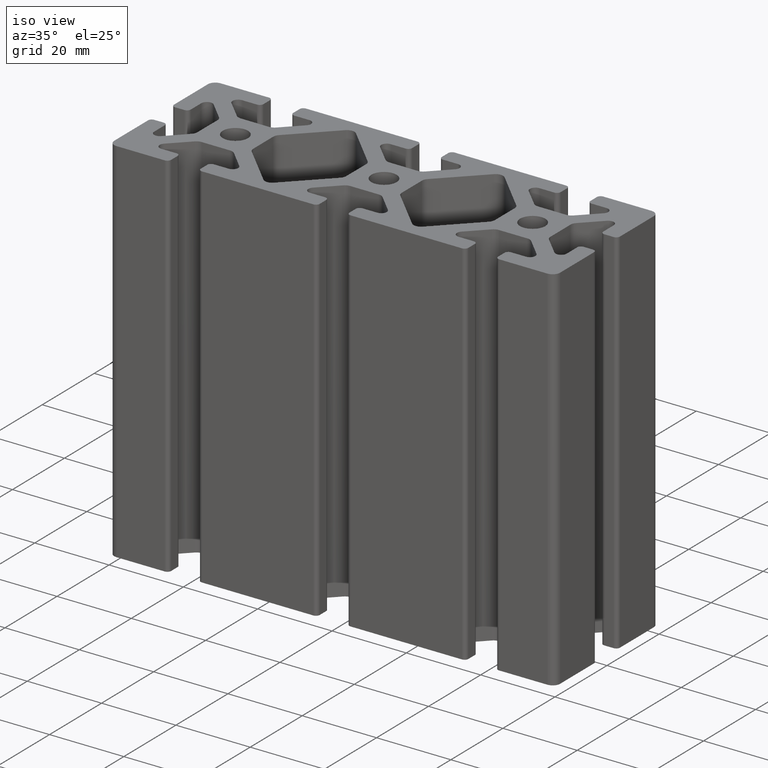
[diagram: clean part render]
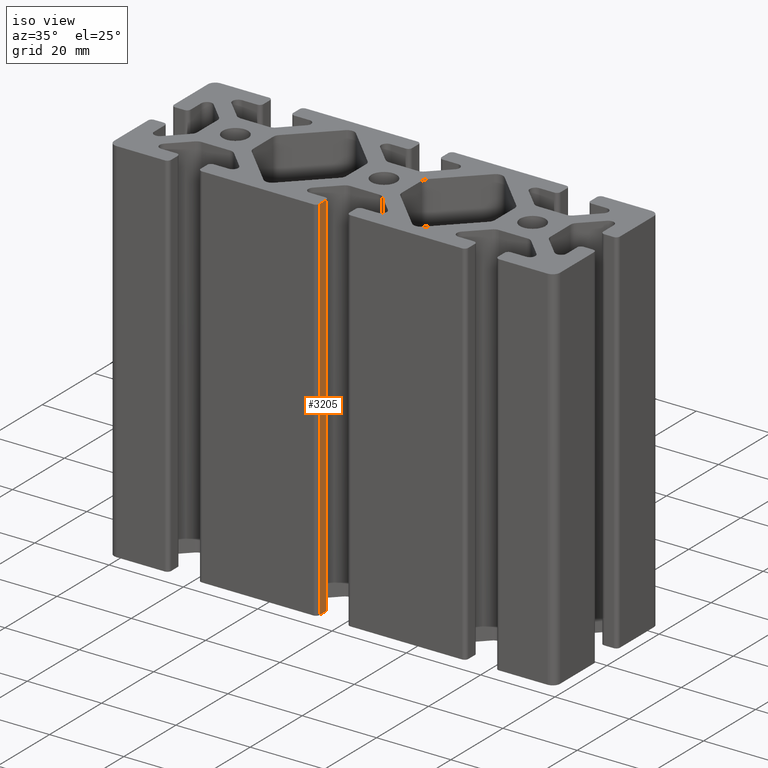
[diagram: same view with one face highlighted and labeled with its STEP entity id]
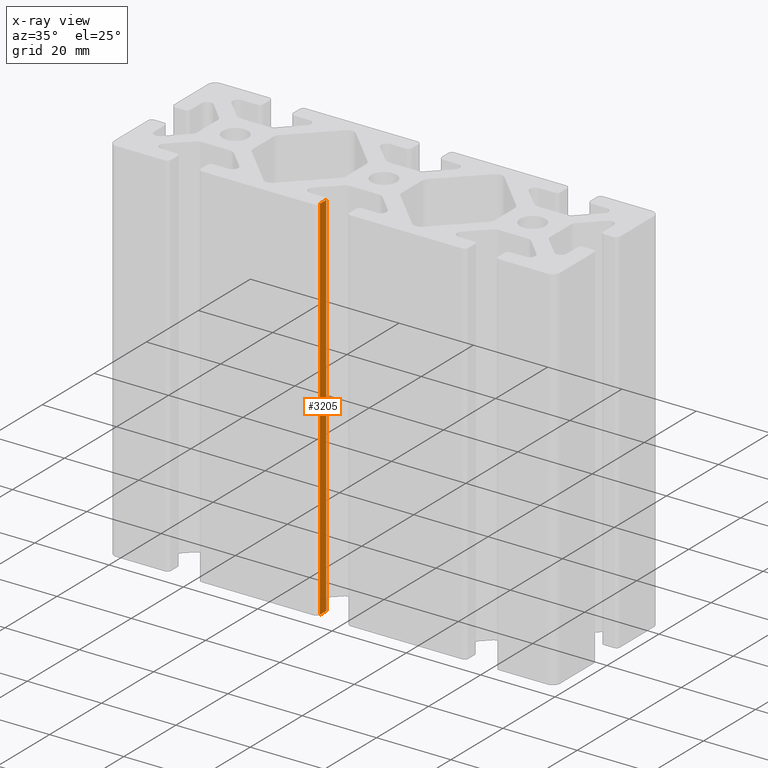
[diagram: x-ray of the same camera — body ghosted, the highlighted face saturated]
A machine part, iso view. The second image highlights one B-rep face of the part: STEP entity #3205.
The next image is the same camera in x-ray: the body ghosted, the highlighted face saturated — about 0% of this face is hidden behind the body in this view.
In plain terms, the highlighted planar face has unit normal (-1, 0, 0).
Its self-contained STEP definition (entity closure, byte-faithful):
#65=PLANE('',#3456);
#189=FACE_OUTER_BOUND('',#354,.T.);
#354=EDGE_LOOP('',(#2387,#2388,#2389,#2390));
#611=LINE('',#5100,#931);
#612=LINE('',#5103,#932);
#613=LINE('',#5105,#933);
#614=LINE('',#5106,#934);
#931=VECTOR('',#4110,100.);
#932=VECTOR('',#4113,2.5);
#933=VECTOR('',#4114,2.5);
#934=VECTOR('',#4115,100.);
#1426=VERTEX_POINT('',#5094);
#1428=VERTEX_POINT('',#5098);
#1429=VERTEX_POINT('',#5102);
#1430=VERTEX_POINT('',#5104);
#1827=EDGE_CURVE('',#1428,#1426,#611,.T.);
#1828=EDGE_CURVE('',#1426,#1429,#612,.T.);
#1829=EDGE_CURVE('',#1430,#1428,#613,.T.);
#1830=EDGE_CURVE('',#1430,#1429,#614,.T.);
#2387=ORIENTED_EDGE('',*,*,#1828,.F.);
#2388=ORIENTED_EDGE('',*,*,#1827,.F.);
#2389=ORIENTED_EDGE('',*,*,#1829,.F.);
#2390=ORIENTED_EDGE('',*,*,#1830,.T.);
#3205=ADVANCED_FACE('',(#189),#65,.F.);
#3456=AXIS2_PLACEMENT_3D('',#5101,#4111,#4112);
#4110=DIRECTION('',(0.,0.,1.));
#4111=DIRECTION('center_axis',(-1.,0.,0.));
#4112=DIRECTION('ref_axis',(0.,0.,1.));
#4113=DIRECTION('',(0.,1.,0.));
#4114=DIRECTION('',(0.,-1.,0.));
#4115=DIRECTION('',(0.,0.,1.));
#5094=CARTESIAN_POINT('',(-4.,-19.,100.));
#5098=CARTESIAN_POINT('',(-4.,-19.,0.));
#5100=CARTESIAN_POINT('',(-4.,-19.,0.));
#5101=CARTESIAN_POINT('Origin',(-4.,-19.,0.));
#5102=CARTESIAN_POINT('',(-4.,-16.5,100.));
#5103=CARTESIAN_POINT('',(-4.,-9.5,100.));
#5104=CARTESIAN_POINT('',(-4.,-16.5,0.));
#5105=CARTESIAN_POINT('',(-4.,-9.5,0.));
#5106=CARTESIAN_POINT('',(-4.,-16.5,0.));